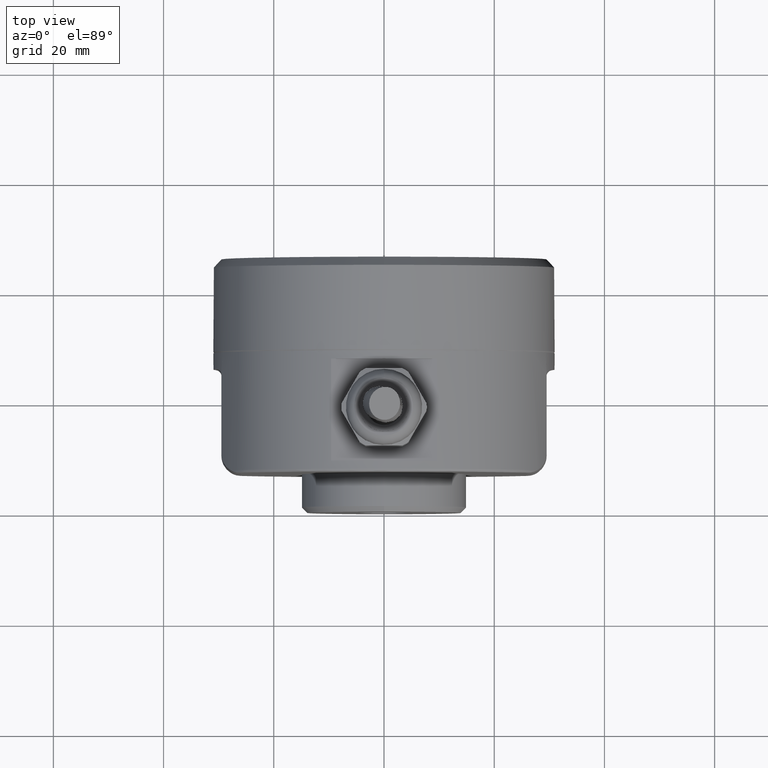
[diagram: clean part render]
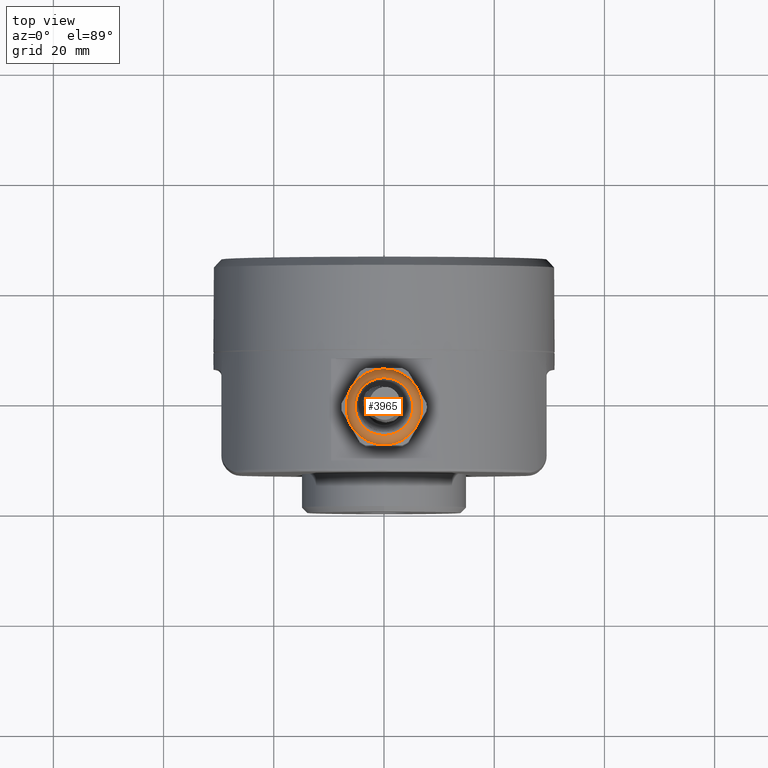
[diagram: same view with one face highlighted and labeled with its STEP entity id]
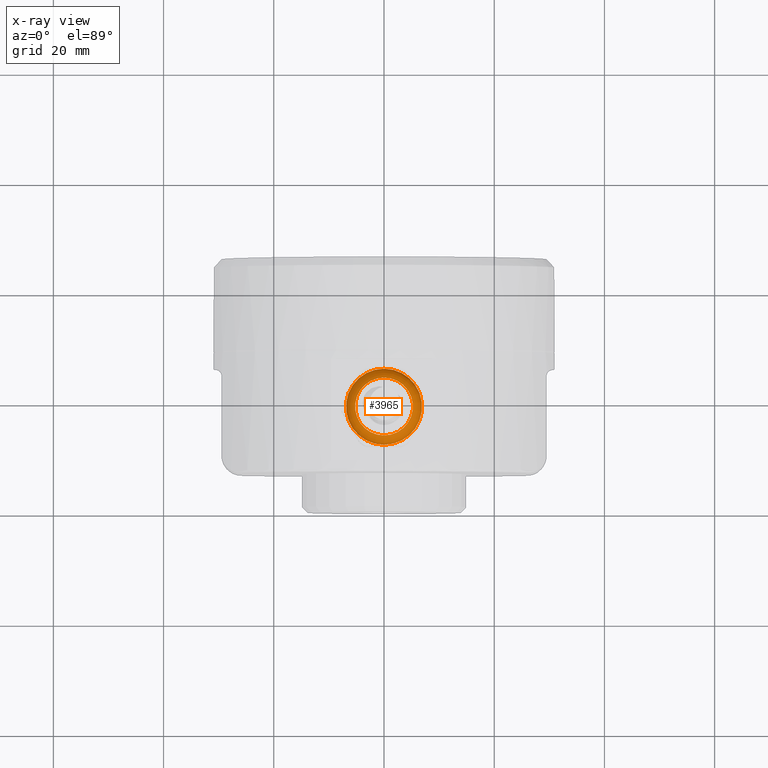
[diagram: x-ray of the same camera — body ghosted, the highlighted face saturated]
A machine part, top view. The second image highlights one B-rep face of the part: STEP entity #3965.
The next image is the same camera in x-ray: the body ghosted, the highlighted face saturated — about 0% of this face is hidden behind the body in this view.
In plain terms, the highlighted toroidal blend (fillet) surface has major radius 3.9 mm and minor (blend) radius 3 mm.
Its self-contained STEP definition (entity closure, byte-faithful):
#188 = CARTESIAN_POINT ( 'NONE',  ( -5.402449637146758563E-33, 18.50000000000000000, 43.47000000000012676 ) ) ;
#309 = EDGE_LOOP ( 'NONE', ( #7211 ) ) ;
#572 = CARTESIAN_POINT ( 'NONE',  ( -6.435157556373043998E-33, 18.50000000000000000, 46.15000000000000568 ) ) ;
#808 = CARTESIAN_POINT ( 'NONE',  ( -5.402449637146758563E-33, 25.39999999999999858, 43.47000000000012676 ) ) ;
#1905 = FACE_OUTER_BOUND ( 'NONE', #4165, .T. ) ;
#2042 = VERTEX_POINT ( 'NONE', #3174 ) ;
#2994 = DIRECTION ( 'NONE',  ( 0.000000000000000000, 1.000000000000000000, 0.000000000000000000 ) ) ;
#3174 = CARTESIAN_POINT ( 'NONE',  ( -6.435157556373043998E-33, 23.74818396370820039, 46.15000000000000568 ) ) ;
#3965 = ADVANCED_FACE ( 'NONE', ( #1905, #4302 ), #11318, .T. ) ;
#4165 = EDGE_LOOP ( 'NONE', ( #11002 ) ) ;
#4302 = FACE_OUTER_BOUND ( 'NONE', #309, .T. ) ;
#4343 = DIRECTION ( 'NONE',  ( 0.000000000000000000, 1.000000000000000000, 0.000000000000000000 ) ) ;
#4658 = CIRCLE ( 'NONE', #14517, 5.248183963708200395 ) ;
#5208 = AXIS2_PLACEMENT_3D ( 'NONE', #188, #12241, #2994 ) ;
#6945 = DIRECTION ( 'NONE',  ( -3.853387758307211698E-34, 2.942327480148401961E-35, 1.000000000000000000 ) ) ;
#7211 = ORIENTED_EDGE ( 'NONE', *, *, #15460, .T. ) ;
#8560 = DIRECTION ( 'NONE',  ( -3.853387758307211698E-34, 2.942327480148401961E-35, 1.000000000000000000 ) ) ;
#9664 = CARTESIAN_POINT ( 'NONE',  ( -5.402449637146758563E-33, 18.50000000000000000, 43.47000000000012676 ) ) ;
#11002 = ORIENTED_EDGE ( 'NONE', *, *, #14731, .F. ) ;
#11318 = TOROIDAL_SURFACE ( 'NONE', #12190, 3.900000000000216627, 2.999999999999784173 ) ;
#12190 = AXIS2_PLACEMENT_3D ( 'NONE', #9664, #6945, #13570 ) ;
#12241 = DIRECTION ( 'NONE',  ( -3.853387758307211698E-34, 2.942327480148401961E-35, 1.000000000000000000 ) ) ;
#13570 = DIRECTION ( 'NONE',  ( 1.133792869293475663E-68, 1.000000000000000000, -2.942327480148401961E-35 ) ) ;
#14517 = AXIS2_PLACEMENT_3D ( 'NONE', #572, #8560, #4343 ) ;
#14731 = EDGE_CURVE ( 'NONE', #2042, #2042, #4658, .T. ) ;
#15460 = EDGE_CURVE ( 'NONE', #15607, #15607, #17315, .T. ) ;
#15607 = VERTEX_POINT ( 'NONE', #808 ) ;
#17315 = CIRCLE ( 'NONE', #5208, 6.899999999999999467 ) ;